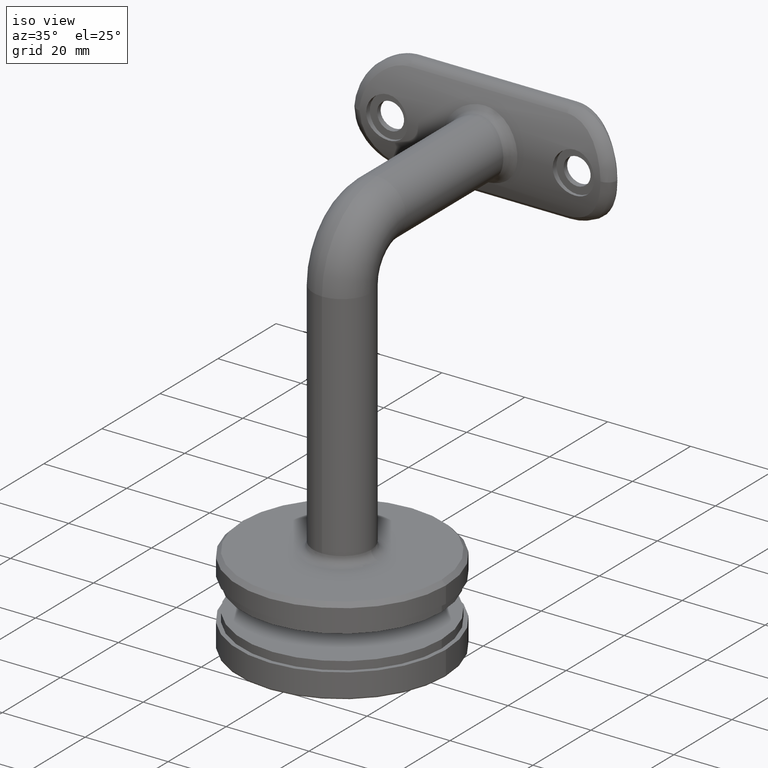
[diagram: clean part render]
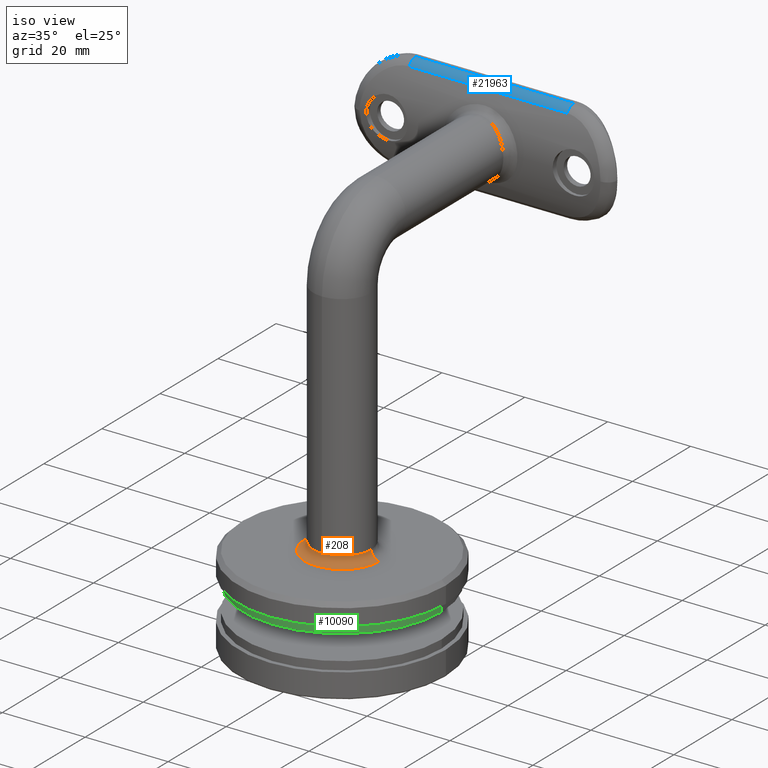
[diagram: same view with three faces highlighted in distinct colors, each labeled with its STEP entity id]
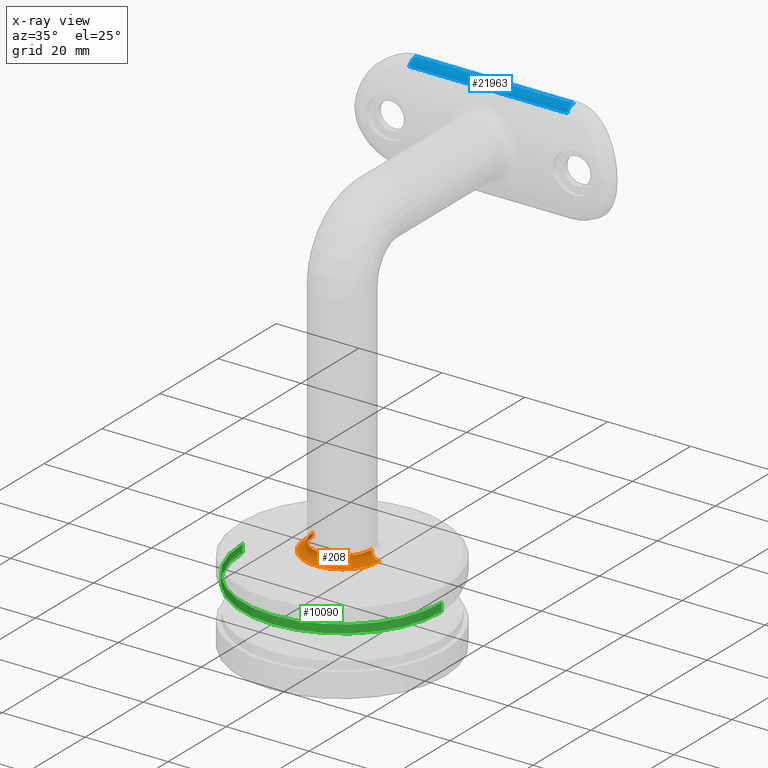
[diagram: x-ray of the same camera — body ghosted, the three highlighted faces saturated]
A machine part, iso view with three faces highlighted in distinct colors.
The next image is the same camera in x-ray (body ghosted, the three faces saturated) — at least one of them is partly hidden behind the body in this view.
Their STEP definitions:

[orange] entity #208 — the highlighted toroidal blend (fillet) surface has major radius 9 mm and minor (blend) radius 2 mm.
#208 = ADVANCED_FACE ( 'NONE', ( #10849 ), #18736, .F. ) ;
#304 = CARTESIAN_POINT ( 'NONE',  ( -9.000000000000001776, -8.572527594031469245E-16, 5.000000000000000000 ) ) ;
#2788 = CARTESIAN_POINT ( 'NONE',  ( 9.000000000000001776, 2.449293598294710852E-16, 7.000000000000000000 ) ) ;
#2887 = CIRCLE ( 'NONE', #20880, 7.000000000000000000 ) ;
#3124 = VERTEX_POINT ( 'NONE', #4311 ) ;
#3996 = ORIENTED_EDGE ( 'NONE', *, *, #20989, .T. ) ;
#4127 = CIRCLE ( 'NONE', #20054, 7.000000000000000000 ) ;
#4311 = CARTESIAN_POINT ( 'NONE',  ( 9.000000000000001776, 2.449293598294709866E-16, 5.000000000000000000 ) ) ;
#4509 = EDGE_CURVE ( 'NONE', #8950, #13874, #4127, .T. ) ;
#4854 = AXIS2_PLACEMENT_3D ( 'NONE', #22229, #17022, #5079 ) ;
#5079 = DIRECTION ( 'NONE',  ( -1.000000000000000000, 0.000000000000000000, 0.000000000000000000 ) ) ;
#5496 = EDGE_CURVE ( 'NONE', #14327, #12084, #10964, .T. ) ;
#6514 = ORIENTED_EDGE ( 'NONE', *, *, #5496, .F. ) ;
#7040 = CARTESIAN_POINT ( 'NONE',  ( 0.000000000000000000, -8.572527594031469245E-16, 5.000000000000000000 ) ) ;
#8950 = VERTEX_POINT ( 'NONE', #10677 ) ;
#9352 = DIRECTION ( 'NONE',  ( -1.000000000000000000, 0.000000000000000000, 0.000000000000000000 ) ) ;
#9942 = EDGE_CURVE ( 'NONE', #3124, #14327, #22377, .T. ) ;
#10110 = ORIENTED_EDGE ( 'NONE', *, *, #15008, .F. ) ;
#10677 = CARTESIAN_POINT ( 'NONE',  ( 0.000000000000000000, -7.000000000000000888, 7.000000000000000000 ) ) ;
#10765 = ORIENTED_EDGE ( 'NONE', *, *, #9942, .F. ) ;
#10849 = FACE_OUTER_BOUND ( 'NONE', #15401, .T. ) ;
#10964 = CIRCLE ( 'NONE', #14932, 2.000000000000000000 ) ;
#11638 = CARTESIAN_POINT ( 'NONE',  ( -9.000000000000001776, -8.572527594031469245E-16, 7.000000000000000000 ) ) ;
#11798 = CARTESIAN_POINT ( 'NONE',  ( 7.000000000000000000, 1.224646799147356165E-16, 7.000000000000000000 ) ) ;
#11903 = CARTESIAN_POINT ( 'NONE',  ( 0.000000000000000000, -8.572527594031469245E-16, 7.000000000000000000 ) ) ;
#12084 = VERTEX_POINT ( 'NONE', #12396 ) ;
#12396 = CARTESIAN_POINT ( 'NONE',  ( -7.000000000000000000, -8.572527594031469245E-16, 7.000000000000000000 ) ) ;
#12777 = ORIENTED_EDGE ( 'NONE', *, *, #4509, .F. ) ;
#13874 = VERTEX_POINT ( 'NONE', #11798 ) ;
#14327 = VERTEX_POINT ( 'NONE', #304 ) ;
#14500 = DIRECTION ( 'NONE',  ( -1.000000000000000000, 0.000000000000000000, 0.000000000000000000 ) ) ;
#14932 = AXIS2_PLACEMENT_3D ( 'NONE', #11638, #15123, #16794 ) ;
#15008 = EDGE_CURVE ( 'NONE', #12084, #8950, #2887, .T. ) ;
#15123 = DIRECTION ( 'NONE',  ( -0.000000000000000000, -1.000000000000000000, -0.000000000000000000 ) ) ;
#15401 = EDGE_LOOP ( 'NONE', ( #10765, #3996, #12777, #10110, #6514 ) ) ;
#16322 = CIRCLE ( 'NONE', #21643, 2.000000000000000000 ) ;
#16794 = DIRECTION ( 'NONE',  ( 0.000000000000000000, 0.000000000000000000, -1.000000000000000000 ) ) ;
#17022 = DIRECTION ( 'NONE',  ( 0.000000000000000000, 0.000000000000000000, -1.000000000000000000 ) ) ;
#18559 = DIRECTION ( 'NONE',  ( -1.224646799147353207E-16, 1.000000000000000000, 0.000000000000000000 ) ) ;
#18736 = TOROIDAL_SURFACE ( 'NONE', #4854, 9.000000000000001776, 2.000000000000000000 ) ;
#19224 = DIRECTION ( 'NONE',  ( 0.000000000000000000, 0.000000000000000000, -1.000000000000000000 ) ) ;
#20054 = AXIS2_PLACEMENT_3D ( 'NONE', #11903, #22289, #22376 ) ;
#20557 = AXIS2_PLACEMENT_3D ( 'NONE', #7040, #19224, #9352 ) ;
#20880 = AXIS2_PLACEMENT_3D ( 'NONE', #21555, #21480, #14500 ) ;
#20989 = EDGE_CURVE ( 'NONE', #3124, #13874, #16322, .T. ) ;
#21480 = DIRECTION ( 'NONE',  ( -0.000000000000000000, -0.000000000000000000, 1.000000000000000000 ) ) ;
#21555 = CARTESIAN_POINT ( 'NONE',  ( 0.000000000000000000, -8.572527594031469245E-16, 7.000000000000000000 ) ) ;
#21643 = AXIS2_PLACEMENT_3D ( 'NONE', #2788, #18559, #22091 ) ;
#22091 = DIRECTION ( 'NONE',  ( -1.000000000000000000, -1.224646799147353207E-16, 0.000000000000000000 ) ) ;
#22229 = CARTESIAN_POINT ( 'NONE',  ( 0.000000000000000000, -8.572527594031469245E-16, 7.000000000000000000 ) ) ;
#22289 = DIRECTION ( 'NONE',  ( -0.000000000000000000, -0.000000000000000000, 1.000000000000000000 ) ) ;
#22376 = DIRECTION ( 'NONE',  ( -1.000000000000000000, 0.000000000000000000, 0.000000000000000000 ) ) ;
#22377 = CIRCLE ( 'NONE', #20557, 9.000000000000001776 ) ;

[blue] entity #21963 — the highlighted cylindrical surface (edge-blend (fillet) strip) has radius 2.5 mm, axis along (-1, -0, -0).
#1109 = LINE ( 'NONE', #17171, #21849 ) ;
#1120 = CIRCLE ( 'NONE', #8787, 2.500000000000002220 ) ;
#1510 = DIRECTION ( 'NONE',  ( -1.000000000000000000, -0.000000000000000000, -0.000000000000000000 ) ) ;
#1560 = VECTOR ( 'NONE', #14026, 1000.000000000000000 ) ;
#1921 = AXIS2_PLACEMENT_3D ( 'NONE', #13627, #1510, #20603 ) ;
#2001 = CYLINDRICAL_SURFACE ( 'NONE', #1921, 2.500000000000002220 ) ;
#2213 = EDGE_LOOP ( 'NONE', ( #11661, #14234, #20684, #14992 ) ) ;
#3174 = CARTESIAN_POINT ( 'NONE',  ( -19.02499999999999858, 52.50668568712331563, 84.99999999999997158 ) ) ;
#3187 = AXIS2_PLACEMENT_3D ( 'NONE', #3174, #8607, #20816 ) ;
#3316 = CARTESIAN_POINT ( 'NONE',  ( 19.02499999999999503, 52.50668568712331563, 84.99999999999997158 ) ) ;
#5096 = DIRECTION ( 'NONE',  ( 0.000000000000000000, 0.000000000000000000, -1.000000000000000000 ) ) ;
#5257 = VERTEX_POINT ( 'NONE', #8616 ) ;
#6181 = CARTESIAN_POINT ( 'NONE',  ( -19.02499999999999858, 50.30228541437842438, 86.17924528301884379 ) ) ;
#6842 = VERTEX_POINT ( 'NONE', #6181 ) ;
#8016 = EDGE_CURVE ( 'NONE', #5257, #6842, #12145, .T. ) ;
#8587 = DIRECTION ( 'NONE',  ( 1.000000000000000000, 0.000000000000000000, -0.000000000000000000 ) ) ;
#8607 = DIRECTION ( 'NONE',  ( -1.000000000000000000, 0.000000000000000000, 0.000000000000000000 ) ) ;
#8616 = CARTESIAN_POINT ( 'NONE',  ( 19.02499999999999503, 50.30228541437842438, 86.17924528301884379 ) ) ;
#8787 = AXIS2_PLACEMENT_3D ( 'NONE', #3316, #8587, #5096 ) ;
#10641 = DIRECTION ( 'NONE',  ( 1.000000000000000000, -0.000000000000000000, -0.000000000000000000 ) ) ;
#11513 = CARTESIAN_POINT ( 'NONE',  ( -19.02499999999999858, 52.50668568712331563, 87.49999999999998579 ) ) ;
#11661 = ORIENTED_EDGE ( 'NONE', *, *, #14767, .F. ) ;
#12145 = LINE ( 'NONE', #17482, #1560 ) ;
#12594 = VERTEX_POINT ( 'NONE', #11513 ) ;
#13627 = CARTESIAN_POINT ( 'NONE',  ( 31.52499999999999858, 52.50668568712331563, 84.99999999999997158 ) ) ;
#14026 = DIRECTION ( 'NONE',  ( -1.000000000000000000, -0.000000000000000000, -0.000000000000000000 ) ) ;
#14234 = ORIENTED_EDGE ( 'NONE', *, *, #8016, .F. ) ;
#14591 = CIRCLE ( 'NONE', #3187, 2.500000000000002220 ) ;
#14767 = EDGE_CURVE ( 'NONE', #6842, #12594, #14591, .T. ) ;
#14992 = ORIENTED_EDGE ( 'NONE', *, *, #20459, .F. ) ;
#15207 = CARTESIAN_POINT ( 'NONE',  ( 19.02499999999999503, 52.50668568712331563, 87.49999999999998579 ) ) ;
#17171 = CARTESIAN_POINT ( 'NONE',  ( 31.52499999999999858, 52.50668568712331563, 87.49999999999998579 ) ) ;
#17482 = CARTESIAN_POINT ( 'NONE',  ( 31.52499999999999858, 50.30228541437842438, 86.17924528301884379 ) ) ;
#19900 = EDGE_CURVE ( 'NONE', #21155, #5257, #1120, .T. ) ;
#19995 = FACE_OUTER_BOUND ( 'NONE', #2213, .T. ) ;
#20459 = EDGE_CURVE ( 'NONE', #12594, #21155, #1109, .T. ) ;
#20603 = DIRECTION ( 'NONE',  ( 0.000000000000000000, 0.000000000000000000, 1.000000000000000000 ) ) ;
#20684 = ORIENTED_EDGE ( 'NONE', *, *, #19900, .F. ) ;
#20816 = DIRECTION ( 'NONE',  ( 0.000000000000000000, 0.000000000000000000, 1.000000000000000000 ) ) ;
#21155 = VERTEX_POINT ( 'NONE', #15207 ) ;
#21849 = VECTOR ( 'NONE', #10641, 1000.000000000000000 ) ;
#21963 = ADVANCED_FACE ( 'NONE', ( #19995 ), #2001, .T. ) ;

[green] entity #10090 — the highlighted cylindrical surface (partial cylindrical patch) has radius 24 mm, axis along (0, 0, 1).
#216 = CIRCLE ( 'NONE', #14385, 24.00000000000000000 ) ;
#1128 = CARTESIAN_POINT ( 'NONE',  ( 24.00000000000000000, 0.000000000000000000, 2.000000000000001776 ) ) ;
#1142 = CIRCLE ( 'NONE', #13861, 24.00000000000000000 ) ;
#1159 = LINE ( 'NONE', #6605, #19186 ) ;
#1978 = VERTEX_POINT ( 'NONE', #15203 ) ;
#2944 = DIRECTION ( 'NONE',  ( -0.000000000000000000, -0.000000000000000000, 1.000000000000000000 ) ) ;
#3236 = EDGE_CURVE ( 'NONE', #13265, #5063, #1159, .T. ) ;
#3645 = CARTESIAN_POINT ( 'NONE',  ( -24.00000000000000000, 2.939152317953647894E-15, 2.000000000000001776 ) ) ;
#4316 = LINE ( 'NONE', #9682, #12780 ) ;
#4466 = CARTESIAN_POINT ( 'NONE',  ( 24.00000000000000000, 0.000000000000000000, 0.000000000000000000 ) ) ;
#5063 = VERTEX_POINT ( 'NONE', #1128 ) ;
#6284 = ORIENTED_EDGE ( 'NONE', *, *, #18648, .F. ) ;
#6605 = CARTESIAN_POINT ( 'NONE',  ( 24.00000000000000000, 0.000000000000000000, 2.000000000000001776 ) ) ;
#7841 = DIRECTION ( 'NONE',  ( -0.000000000000000000, -0.000000000000000000, 1.000000000000000000 ) ) ;
#9582 = AXIS2_PLACEMENT_3D ( 'NONE', #13204, #20004, #13282 ) ;
#9614 = ORIENTED_EDGE ( 'NONE', *, *, #10630, .T. ) ;
#9682 = CARTESIAN_POINT ( 'NONE',  ( -24.00000000000000000, 2.939152317953647894E-15, 2.000000000000001776 ) ) ;
#10076 = CYLINDRICAL_SURFACE ( 'NONE', #9582, 24.00000000000000000 ) ;
#10090 = ADVANCED_FACE ( 'NONE', ( #19076 ), #10076, .T. ) ;
#10630 = EDGE_CURVE ( 'NONE', #1978, #13265, #216, .T. ) ;
#10649 = EDGE_CURVE ( 'NONE', #1978, #20984, #4316, .T. ) ;
#11426 = DIRECTION ( 'NONE',  ( -0.000000000000000000, -0.000000000000000000, 1.000000000000000000 ) ) ;
#12780 = VECTOR ( 'NONE', #7841, 1000.000000000000000 ) ;
#13204 = CARTESIAN_POINT ( 'NONE',  ( 0.000000000000000000, 0.000000000000000000, 2.000000000000001776 ) ) ;
#13265 = VERTEX_POINT ( 'NONE', #4466 ) ;
#13282 = DIRECTION ( 'NONE',  ( 1.000000000000000000, 0.000000000000000000, 0.000000000000000000 ) ) ;
#13534 = DIRECTION ( 'NONE',  ( 1.000000000000000000, 0.000000000000000000, 0.000000000000000000 ) ) ;
#13861 = AXIS2_PLACEMENT_3D ( 'NONE', #20342, #2944, #13534 ) ;
#14385 = AXIS2_PLACEMENT_3D ( 'NONE', #18111, #11426, #18416 ) ;
#15203 = CARTESIAN_POINT ( 'NONE',  ( -24.00000000000000000, 2.939152317953647894E-15, 0.000000000000000000 ) ) ;
#16609 = ORIENTED_EDGE ( 'NONE', *, *, #3236, .T. ) ;
#17541 = ORIENTED_EDGE ( 'NONE', *, *, #10649, .F. ) ;
#18111 = CARTESIAN_POINT ( 'NONE',  ( 0.000000000000000000, 0.000000000000000000, 0.000000000000000000 ) ) ;
#18416 = DIRECTION ( 'NONE',  ( 1.000000000000000000, 0.000000000000000000, 0.000000000000000000 ) ) ;
#18622 = DIRECTION ( 'NONE',  ( -0.000000000000000000, -0.000000000000000000, 1.000000000000000000 ) ) ;
#18648 = EDGE_CURVE ( 'NONE', #20984, #5063, #1142, .T. ) ;
#19076 = FACE_OUTER_BOUND ( 'NONE', #21537, .T. ) ;
#19186 = VECTOR ( 'NONE', #18622, 1000.000000000000000 ) ;
#20004 = DIRECTION ( 'NONE',  ( -0.000000000000000000, -0.000000000000000000, 1.000000000000000000 ) ) ;
#20342 = CARTESIAN_POINT ( 'NONE',  ( 0.000000000000000000, 0.000000000000000000, 2.000000000000001776 ) ) ;
#20984 = VERTEX_POINT ( 'NONE', #3645 ) ;
#21537 = EDGE_LOOP ( 'NONE', ( #17541, #9614, #16609, #6284 ) ) ;